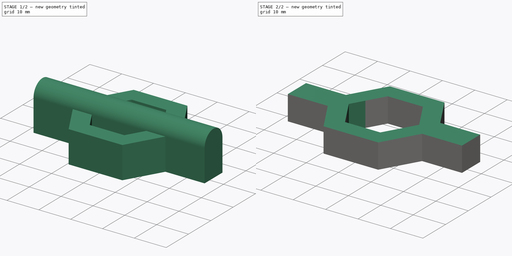
[diagram: build sequence overview — one tinted view per stage of 2, left to right]
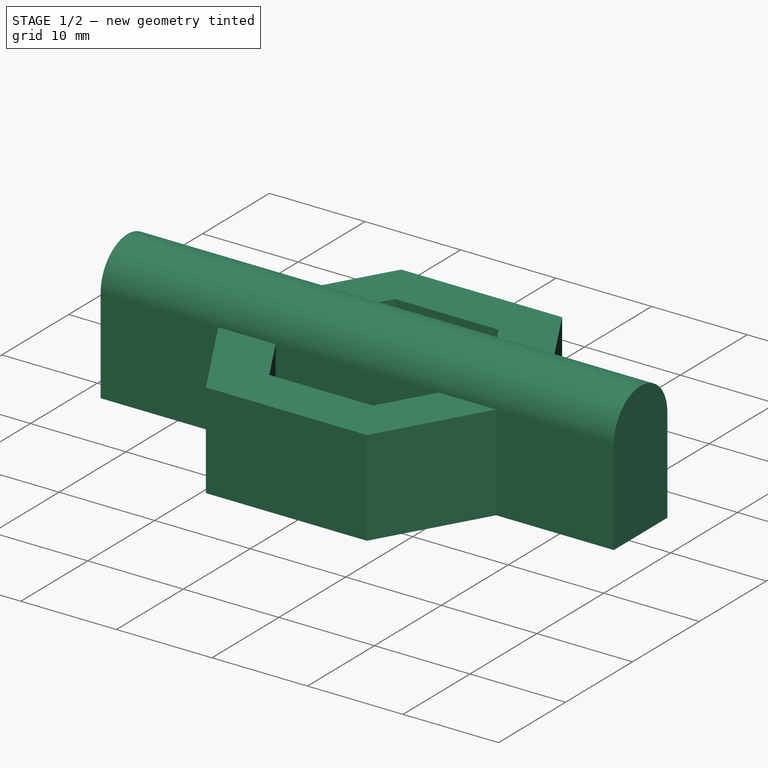
[diagram: stage 1 of 2 — iso view after this stage's code; geometry added in this stage tinted green]
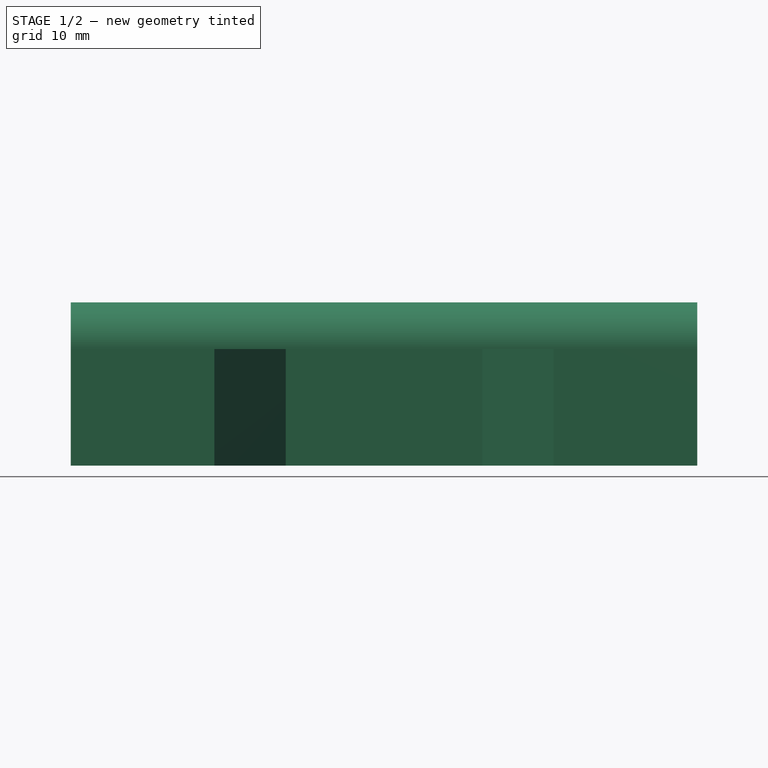
[diagram: stage 1 of 2 — front view after this stage's code; geometry added in this stage tinted green]
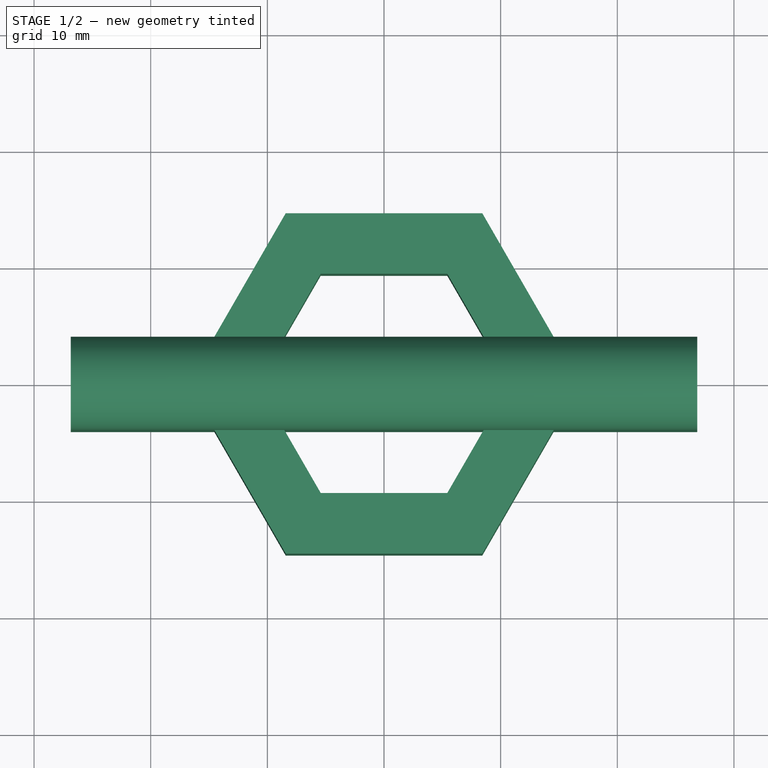
[diagram: stage 1 of 2 — top view after this stage's code; geometry added in this stage tinted green]
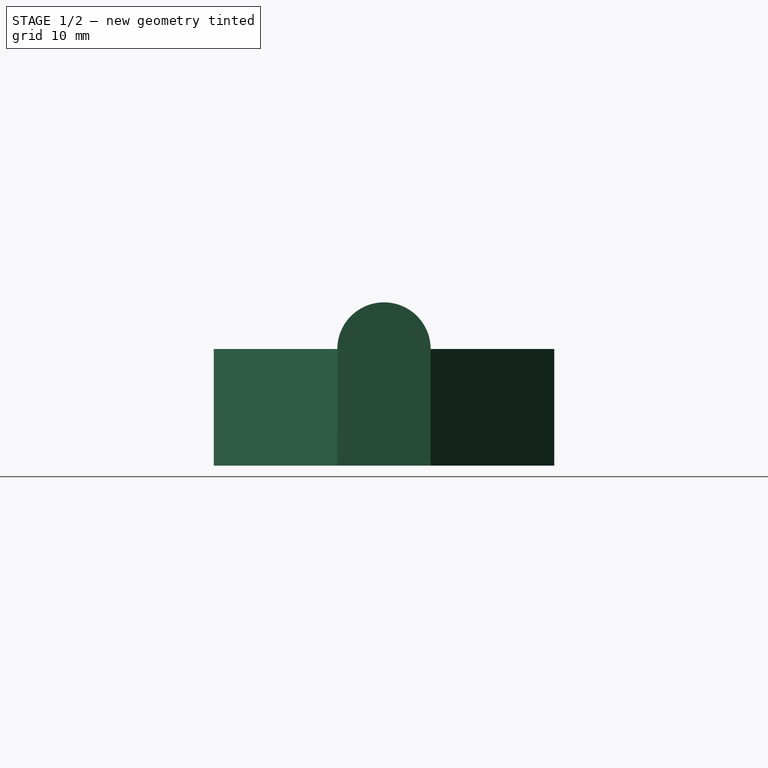
[diagram: stage 1 of 2 — right view after this stage's code; geometry added in this stage tinted green]
FCSTD DOCUMENT  (FreeCAD 1.0R39109 (Git))
Label: trailerBoltOpenerSmall
License: All rights reserved
LicenseURL: http://en.wikipedia.org/wiki/All_rights_reserved
objects: Sketcher::SketchObject×5, PartDesign::Pad×2, PartDesign::Pocket×2, Spreadsheet::Sheet×1, PartDesign::Body×1
note: 23 computed .brp shape members not serialized (recipe doc carries the construction recipe); baked Part::Feature solids carry a one-line shape summary decoded from their .brp

FEATURE [Sketcher::SketchObject] Sketch
  ArcFitTolerance = 0
  AttachmentSupport = -> [XY_Plane]
  FullyConstrained = true
  MakeInternals = false
  MapMode = 5
  expr: Constraints[38] = Spreadsheet.innerR
  expr: Constraints[39] = Spreadsheet.outerR
  sketch-geometry (14):
    g0: LineSegment StartX=10.85 StartY=0 StartZ=0 EndX=5.425 EndY=9.39638 EndZ=0
    g1: LineSegment StartX=5.425 StartY=9.39638 StartZ=0 EndX=-5.425 EndY=9.39638 EndZ=0
    g2: LineSegment StartX=-5.425 StartY=9.39638 StartZ=0 EndX=-10.85 EndY=4.7358e-12 EndZ=0
    g3: LineSegment StartX=-10.85 StartY=4.736e-12 StartZ=0 EndX=-5.425 EndY=-9.39638 EndZ=0
    g4: LineSegment StartX=-5.425 StartY=-9.39638 StartZ=0 EndX=5.425 EndY=-9.39638 EndZ=0
    g5: LineSegment StartX=5.425 StartY=-9.39638 StartZ=0 EndX=10.85 EndY=0 EndZ=0
    g6: Circle [constr] CenterX=0 CenterY=0 CenterZ=0 NormalX=0 NormalY=0 NormalZ=1 AngleXU=0 Radius=10.85
    g7: LineSegment StartX=16.85 StartY=0 StartZ=0 EndX=8.425 EndY=14.5925 EndZ=0
    g8: LineSegment StartX=8.425 StartY=14.5925 StartZ=0 EndX=-8.425 EndY=14.5925 EndZ=0
    g9: LineSegment StartX=-8.425 StartY=14.5925 StartZ=0 EndX=-16.85 EndY=4.7411e-12 EndZ=0
    g10: LineSegment StartX=-16.85 StartY=4.7415e-12 StartZ=0 EndX=-8.425 EndY=-14.5925 EndZ=0
    g11: LineSegment StartX=-8.425 StartY=-14.5925 StartZ=0 EndX=8.425 EndY=-14.5925 EndZ=0
    g12: LineSegment StartX=8.425 StartY=-14.5925 StartZ=0 EndX=16.85 EndY=0 EndZ=0
    g13: Circle [constr] CenterX=0 CenterY=0 CenterZ=0 NormalX=0 NormalY=0 NormalZ=1 AngleXU=0 Radius=16.85
  constraints (32):
    c: Coincident(g0,g1)
    c: Coincident(g1,g2)
    c: Coincident(g2,g3)
    c: Coincident(g3,g4)
    c: Coincident(g4,g5)
    c: Coincident(g5,g0)
    c: Equal(g0, g1-g5) x5
    c: PointOnObject(g0,g6)
    c: PointOnObject(g1,g6)
    c: PointOnObject(g2,g6)
    c: PointOnObject(g3,g6)
    c: PointOnObject(g4,g6)
    c: PointOnObject(g5,g6)
    c: Coincident(g6,g-1)
    c: PointOnObject(g5,g-1)
    c: Coincident(g7,g8)
    c: Coincident(g8,g9)
    c: Coincident(g9,g10)
    c: Coincident(g10,g11)
    c: Coincident(g11,g12)
    c: Coincident(g12,g7)
    c: Equal(g7, g8-g12) x5
    c: PointOnObject(g7,g13)
    c: PointOnObject(g8,g13)
    c: PointOnObject(g9,g13)
    c: PointOnObject(g10,g13)
    c: PointOnObject(g11,g13)
    c: PointOnObject(g12,g13)
    c: Coincident(g13,g6)
    c: PointOnObject(g12,g-1)
    c: Radius(g6) = 10.85
    c: Radius(g13) = 16.85
FEATURE [Spreadsheet::Sheet] Spreadsheet
  cells = A2='innerR; B2(innerR)==21.7 / 2; D2='21.2 too small; E2='22 a bit too lose; F2='21.5 a bit too tight; G2=21.7; H2='21.6 use tool to squeeze in; A3='innerRThickness; B3(innerRThickness)=6; A4='outerR; B4(outerR)==innerR + innerRThickness; A5='height; B5(height)=10; A6='earHeight; B6(earHeight)=20; A7='earWidth; B7(earWidth)=8
FEATURE [Sketcher::SketchObject] Sketch001
  ArcFitTolerance = 0
  AttachmentSupport = -> [XY_Plane]
  FullyConstrained = true
  MakeInternals = false
  MapMode = 5
  expr: Constraints[16] = Spreadsheet.earWidth
  expr: Constraints[17] = Spreadsheet.earHeight
  expr: Constraints[20] = Spreadsheet.innerR * 2
  sketch-geometry (8):
    g0: LineSegment StartX=-30.85 StartY=4 StartZ=0 EndX=-10.85 EndY=4 EndZ=0
    g1: LineSegment StartX=-10.85 StartY=4 StartZ=0 EndX=-10.85 EndY=-4 EndZ=0
    g2: LineSegment StartX=-10.85 StartY=-4 StartZ=0 EndX=-30.85 EndY=-4 EndZ=0
    g3: LineSegment StartX=-30.85 StartY=-4 StartZ=0 EndX=-30.85 EndY=4 EndZ=0
    g4: LineSegment StartX=10.85 StartY=4 StartZ=0 EndX=30.85 EndY=4 EndZ=0
    g5: LineSegment StartX=30.85 StartY=4 StartZ=0 EndX=30.85 EndY=-4 EndZ=0
    g6: LineSegment StartX=30.85 StartY=-4 StartZ=0 EndX=10.85 EndY=-4 EndZ=0
    g7: LineSegment StartX=10.85 StartY=-4 StartZ=0 EndX=10.85 EndY=4 EndZ=0
  constraints (21):
    c: Coincident(g0,g1)
    c: Coincident(g1,g2)
    c: Coincident(g2,g3)
    c: Coincident(g3,g0)
    c: Horizontal(g0)
    c: Horizontal(g2)
    c: Vertical(g1)
    c: Coincident(g4,g5)
    c: Coincident(g5,g6)
    c: Coincident(g6,g7)
    c: Coincident(g7,g4)
    c: Horizontal(g4)
    c: Horizontal(g6)
    c: Vertical(g5)
    c: Symmetric(g0,g2,g-1)
    c: Symmetric(g4,g6,g-1)
    c: DistanceY(g1,g1) = 8
    c: DistanceX(g0,g0) = 20
    c: Equal(g0,g4)
    c: Symmetric(g0,g4,g-2)
    c: DistanceX(g0,g4) = 21.7
FEATURE [PartDesign::Pad] Pad
  Direction = (0,0,1)
  Length = 10
  Length2 = 10
  Profile = -> Sketch
  ReferenceAxis = -> Sketch [N_Axis]
  Suppressed = false
  Type = 0
  expr: Length = Spreadsheet.height
FEATURE [Sketcher::SketchObject] Sketch002
  ArcFitTolerance = 0
  AttachmentSupport = -> [YZ_Plane]
  FullyConstrained = true
  MakeInternals = false
  MapMode = 5
  Placement = pos=(0,0,0) rot=(0.57735,0.57735,0.57735;2.0944rad)
  expr: Constraints[10] = Spreadsheet.height
  expr: Constraints[3] = Spreadsheet.earWidth / 2
  sketch-geometry (4):
    g0: ArcOfCircle CenterX=0 CenterY=10 CenterZ=0 NormalX=0 NormalY=0 NormalZ=1 AngleXU=0 Radius=4 StartAngle=-9e-16 EndAngle=3.14159
    g1: LineSegment StartX=-4 StartY=10 StartZ=0 EndX=-4 EndY=0 EndZ=0
    g2: LineSegment StartX=4 StartY=0 StartZ=0 EndX=4 EndY=10 EndZ=0
    g3: LineSegment StartX=-4 StartY=0 StartZ=0 EndX=4 EndY=0 EndZ=0
  constraints (11):
    c: Tangent(g0,g1) = -1.5708
    c: Tangent(g2,g0) = -1.5708
    c: PointOnObject(g0,g-2)
    c: Radius(g0) = 4
    c: Coincident(g3,g1)
    c: Coincident(g3,g2)
    c: Horizontal(g3)
    c: PointOnObject(g2,g-1)
    c: Vertical(g1)
    c: Vertical(g2)
    c: DistanceY(g-1,g0) = 10
FEATURE [PartDesign::Pad] Pad002
  BaseFeature = -> Pad
  Direction = (1,0,0)
  Length = 53.7
  Length2 = 10
  Midplane = true
  Profile = -> Sketch002
  ReferenceAxis = -> Sketch002 [N_Axis]
  Suppressed = false
  Type = 0
  expr: Length = Spreadsheet.outerR * 2 + Spreadsheet.earHeight
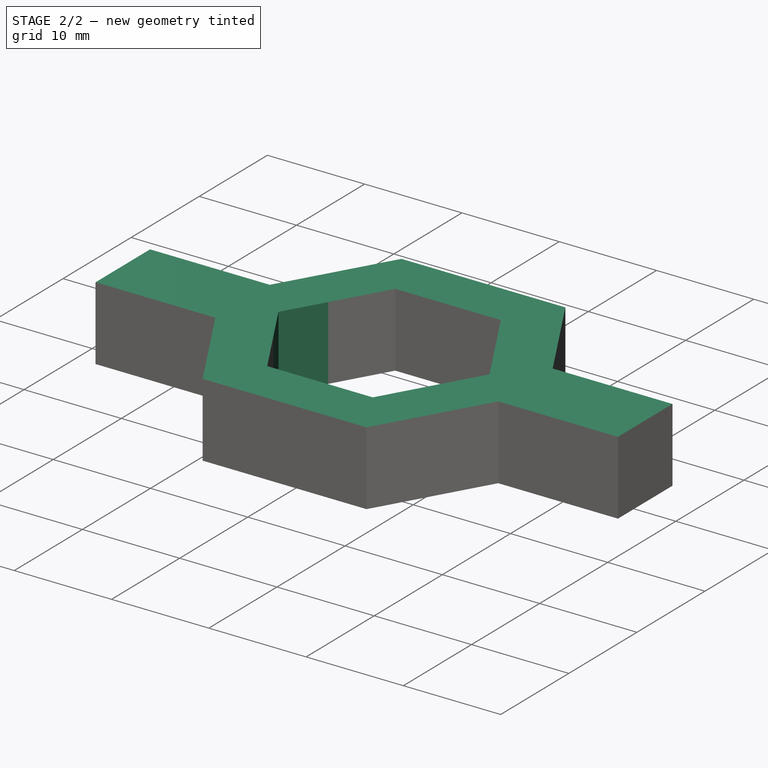
[diagram: stage 2 of 2 — iso view after this stage's code; geometry added in this stage tinted green]
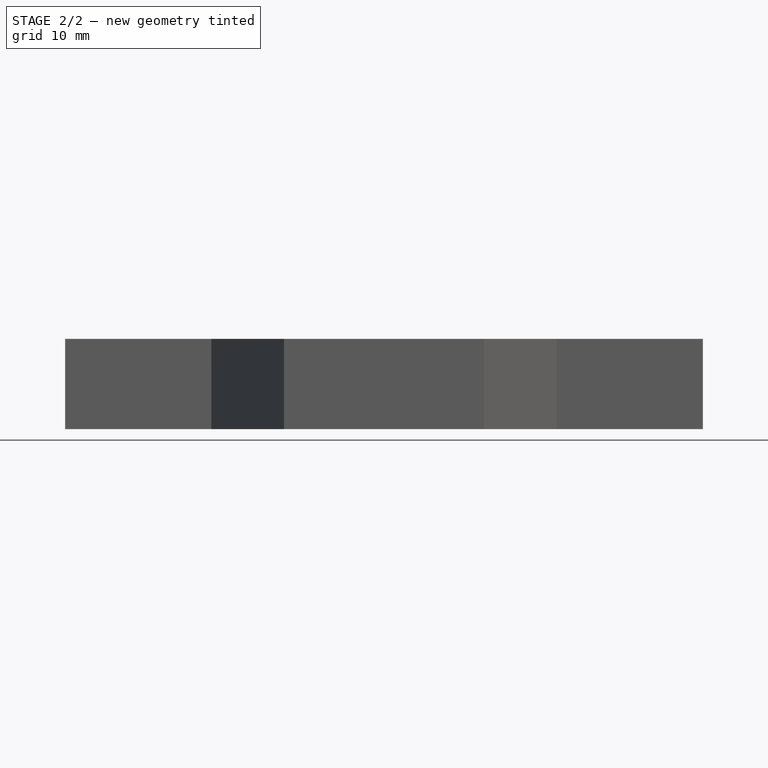
[diagram: stage 2 of 2 — front view after this stage's code; geometry added in this stage tinted green]
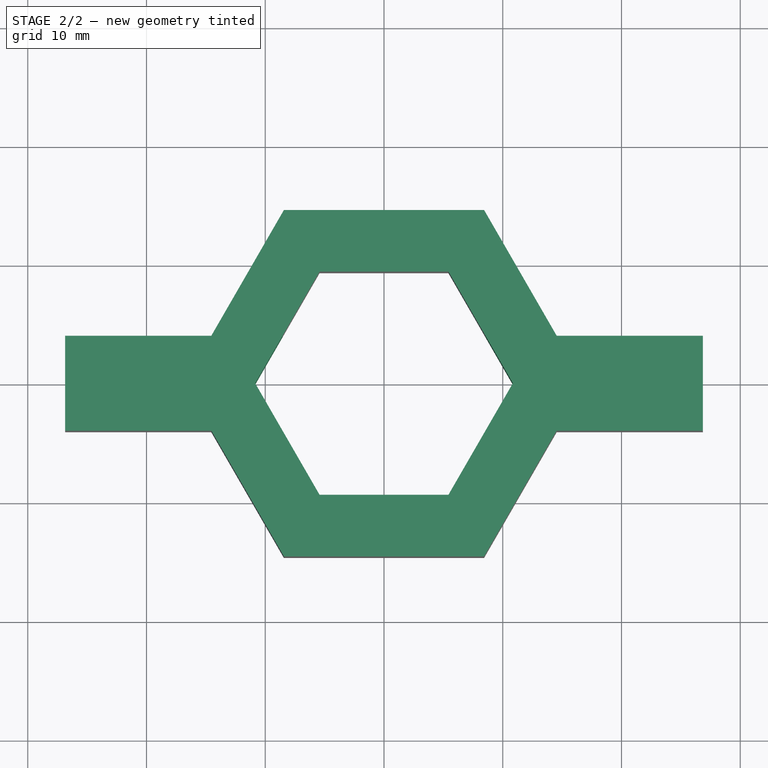
[diagram: stage 2 of 2 — top view after this stage's code; geometry added in this stage tinted green]
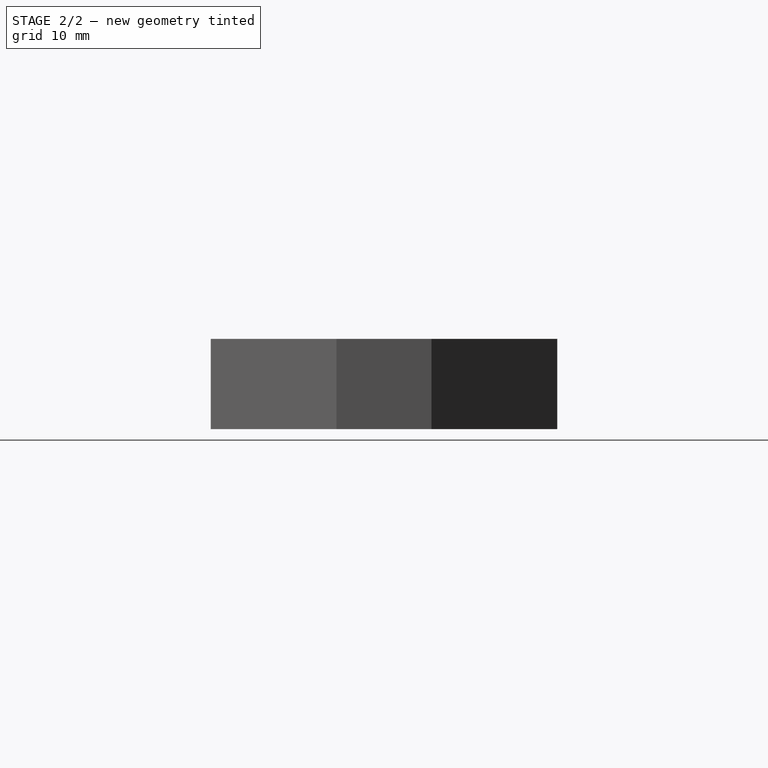
[diagram: stage 2 of 2 — right view after this stage's code; geometry added in this stage tinted green]
FEATURE [Sketcher::SketchObject] Sketch003
  ArcFitTolerance = 0
  AttachmentSupport = -> [XY_Plane]
  FullyConstrained = true
  MakeInternals = false
  MapMode = 5
  expr: Constraints[19] = Spreadsheet.innerR
  sketch-geometry (7):
    g0: LineSegment StartX=10.85 StartY=0 StartZ=0 EndX=5.425 EndY=9.39638 EndZ=0
    g1: LineSegment StartX=5.425 StartY=9.39638 StartZ=0 EndX=-5.425 EndY=9.39638 EndZ=0
    g2: LineSegment StartX=-5.425 StartY=9.39638 StartZ=0 EndX=-10.85 EndY=1.23919e-11 EndZ=0
    g3: LineSegment StartX=-10.85 StartY=1.23925e-11 StartZ=0 EndX=-5.425 EndY=-9.39638 EndZ=0
    g4: LineSegment StartX=-5.425 StartY=-9.39638 StartZ=0 EndX=5.425 EndY=-9.39638 EndZ=0
    g5: LineSegment StartX=5.425 StartY=-9.39638 StartZ=0 EndX=10.85 EndY=0 EndZ=0
    g6: Circle [constr] CenterX=0 CenterY=0 CenterZ=0 NormalX=0 NormalY=0 NormalZ=1 AngleXU=0 Radius=10.85
  constraints (16):
    c: Coincident(g0,g1)
    c: Coincident(g1,g2)
    c: Coincident(g2,g3)
    c: Coincident(g3,g4)
    c: Coincident(g4,g5)
    c: Coincident(g5,g0)
    c: Equal(g0, g1-g5) x5
    c: PointOnObject(g0,g6)
    c: PointOnObject(g1,g6)
    c: PointOnObject(g2,g6)
    c: PointOnObject(g3,g6)
    c: PointOnObject(g4,g6)
    c: PointOnObject(g5,g6)
    c: Coincident(g6,g-1)
    c: PointOnObject(g5,g-1)
    c: Radius(g6) = 10.85
FEATURE [PartDesign::Pocket] Pocket
  BaseFeature = -> Pad002
  Direction = (0,0,-1)
  Length = 5
  Length2 = 5
  Midplane = true
  Profile = -> Sketch003
  ReferenceAxis = -> Sketch003 [N_Axis]
  Suppressed = false
  Type = 1
FEATURE [Sketcher::SketchObject] Sketch004
  ArcFitTolerance = 0
  AttachmentSupport = -> [XZ_Plane]
  FullyConstrained = false
  MakeInternals = false
  MapMode = 5
  Placement = pos=(0,0,0) rot=(1,0,0;1.5708rad)
  sketch-geometry (8):
    g0: LineSegment StartX=-32.0587 StartY=7.6 StartZ=0 EndX=31.3485 EndY=7.6 EndZ=0
    g1: LineSegment StartX=31.3485 StartY=7.6 StartZ=0 EndX=31.3485 EndY=-1.88343 EndZ=0
    g2: LineSegment StartX=31.3485 StartY=-1.88343 StartZ=0 EndX=-32.0587 EndY=-1.88343 EndZ=0
    g3: LineSegment StartX=-32.0587 StartY=-1.88343 StartZ=0 EndX=-32.0587 EndY=7.6 EndZ=0
    g4: LineSegment StartX=-40.4662 StartY=25.9387 StartZ=0 EndX=42.1501 EndY=25.9387 EndZ=0
    g5: LineSegment StartX=42.1501 StartY=25.9387 StartZ=0 EndX=42.1501 EndY=-9.75975 EndZ=0
    g6: LineSegment StartX=42.1501 StartY=-9.75975 StartZ=0 EndX=-40.4662 EndY=-9.75975 EndZ=0
    g7: LineSegment StartX=-40.4662 StartY=-9.75975 StartZ=0 EndX=-40.4662 EndY=25.9387 EndZ=0
  constraints (17):
    c: Coincident(g0,g1)
    c: Coincident(g1,g2)
    c: Coincident(g2,g3)
    c: Coincident(g3,g0)
    c: Horizontal(g0)
    c: Horizontal(g2)
    c: Vertical(g1)
    c: Vertical(g3)
    c: Coincident(g4,g5)
    c: Coincident(g5,g6)
    c: Coincident(g6,g7)
    c: Coincident(g7,g4)
    c: Horizontal(g4)
    c: Horizontal(g6)
    c: Vertical(g5)
    c: Vertical(g7)
    c: DistanceY(g-1,g0) = 7.6
FEATURE [PartDesign::Pocket] Pocket001
  BaseFeature = -> Pocket
  Direction = (0,1,-2e-16)
  Length = 5
  Length2 = 5
  Midplane = true
  Profile = -> Sketch004
  ReferenceAxis = -> Sketch004 [N_Axis]
  Suppressed = false
  Type = 1
FEATURE [PartDesign::Body] Body
  AllowCompound = false
  Group = -> [Sketch,Sketch001,Pad,Sketch002,Pad002,Sketch003,Pocket,Sketch004,Pocket001]
  Origin = -> Origin
  Tip = -> Pocket001
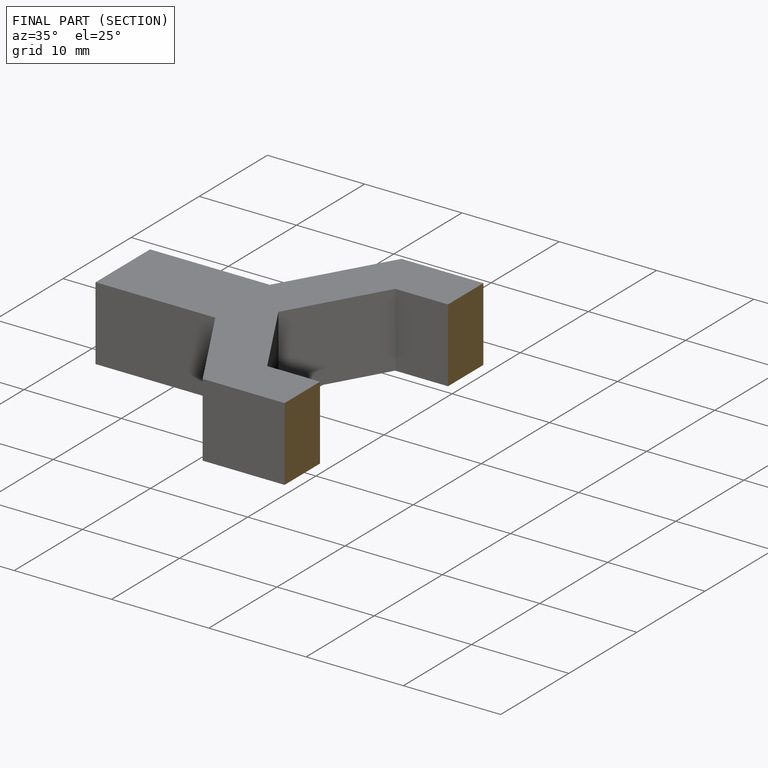
[diagram: finished part — half-section view (interior)]
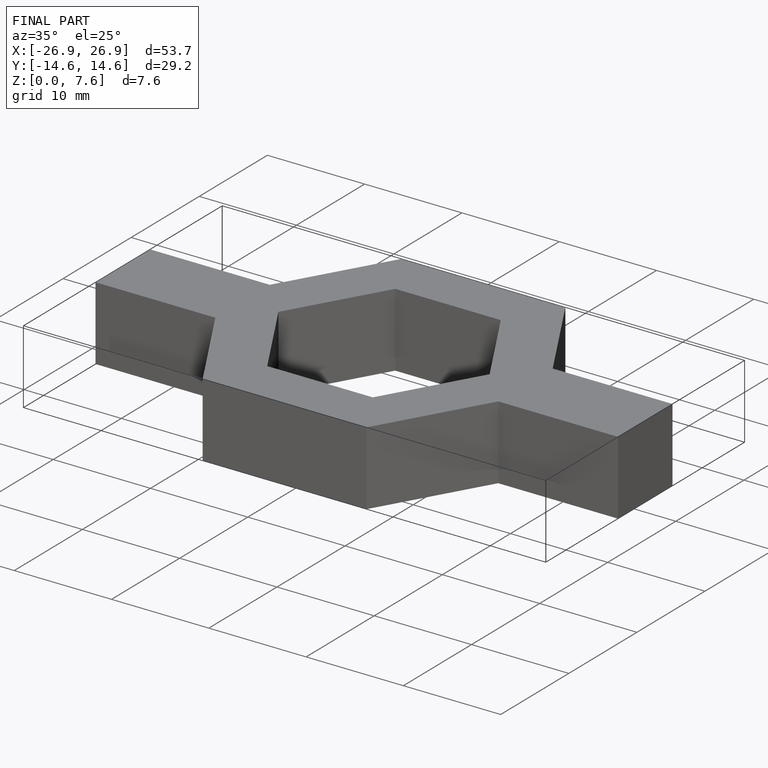
[diagram: finished part — iso view with bounding-box wireframe]
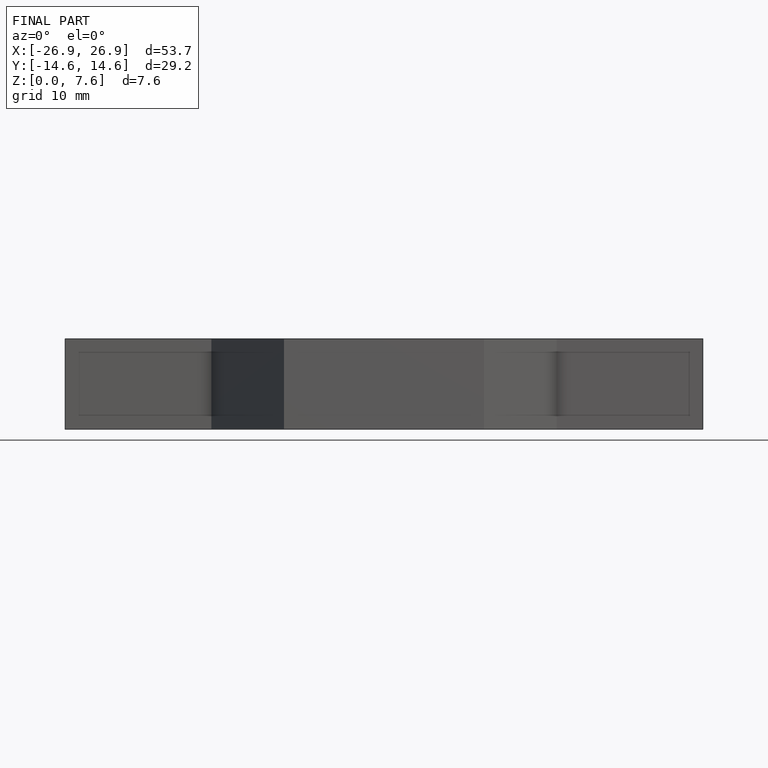
[diagram: finished part — front view with bounding-box wireframe]
